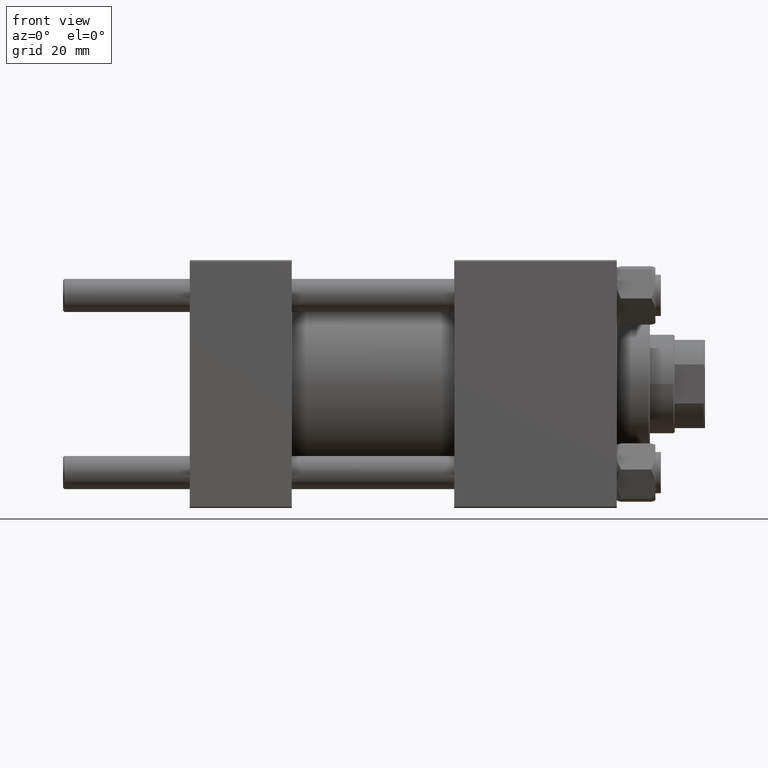
[diagram: clean part render]
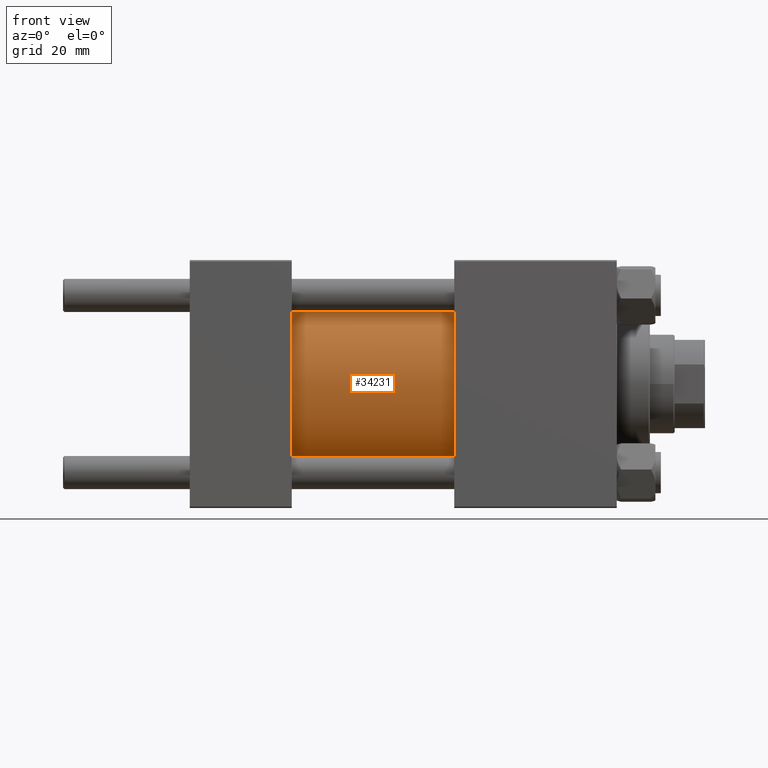
[diagram: same view with one face highlighted and labeled with its STEP entity id]
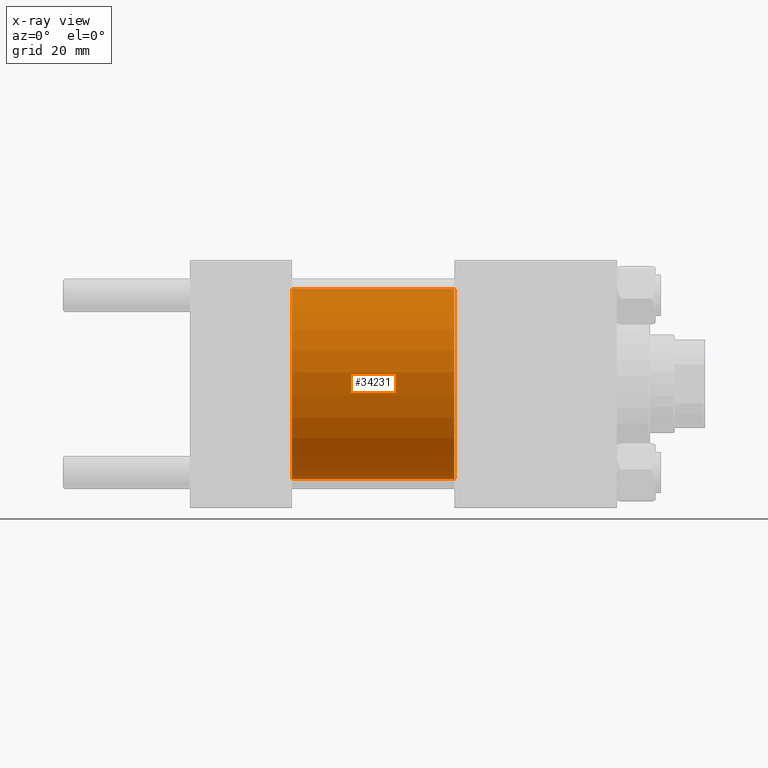
[diagram: x-ray of the same camera — body ghosted, the highlighted face saturated]
A machine part, front view. The second image highlights one B-rep face of the part: STEP entity #34231.
The next image is the same camera in x-ray: the body ghosted, the highlighted face saturated — about 4% of this face is hidden behind the body in this view.
In plain terms, the highlighted cylindrical surface (partial cylindrical patch) has radius 34.5 mm, axis along (-1, -0, -0).
Its self-contained STEP definition (entity closure, byte-faithful):
#2486 = DIRECTION ( 'NONE',  ( 1.000000000000000000, -0.000000000000000000, 0.000000000000000000 ) ) ;
#3474 = CARTESIAN_POINT ( 'NONE',  ( 96.00000000000000000, 0.000000000000000000, 0.000000000000000000 ) ) ;
#4634 = VECTOR ( 'NONE', #36415, 1000.000000000000000 ) ;
#6423 = DIRECTION ( 'NONE',  ( 0.000000000000000000, 0.000000000000000000, 1.000000000000000000 ) ) ;
#7741 = DIRECTION ( 'NONE',  ( 0.000000000000000000, 0.000000000000000000, -1.000000000000000000 ) ) ;
#7919 = CARTESIAN_POINT ( 'NONE',  ( 37.00000000000000000, 0.000000000000000000, 34.49999999999999289 ) ) ;
#9482 = AXIS2_PLACEMENT_3D ( 'NONE', #17870, #2486, #21898 ) ;
#9581 = ORIENTED_EDGE ( 'NONE', *, *, #30177, .T. ) ;
#10390 = CARTESIAN_POINT ( 'NONE',  ( 96.00000000000000000, 0.000000000000000000, 34.49999999999999289 ) ) ;
#10962 = CARTESIAN_POINT ( 'NONE',  ( 96.00000000000000000, 4.225031457058367344E-15, -34.49999999999999289 ) ) ;
#11877 = CARTESIAN_POINT ( 'NONE',  ( 37.00000000000000000, 4.225031457058367344E-15, -34.49999999999999289 ) ) ;
#12064 = CARTESIAN_POINT ( 'NONE',  ( 96.00000000000000000, 0.000000000000000000, 34.49999999999999289 ) ) ;
#14009 = CARTESIAN_POINT ( 'NONE',  ( 96.00000000000000000, 0.000000000000000000, 0.000000000000000000 ) ) ;
#14404 = ORIENTED_EDGE ( 'NONE', *, *, #45543, .F. ) ;
#15113 = CIRCLE ( 'NONE', #9482, 34.49999999999999289 ) ;
#17870 = CARTESIAN_POINT ( 'NONE',  ( 37.00000000000000000, 0.000000000000000000, 0.000000000000000000 ) ) ;
#20001 = AXIS2_PLACEMENT_3D ( 'NONE', #3474, #42329, #7741 ) ;
#21898 = DIRECTION ( 'NONE',  ( 0.000000000000000000, 0.000000000000000000, 1.000000000000000000 ) ) ;
#23409 = ORIENTED_EDGE ( 'NONE', *, *, #26488, .F. ) ;
#25596 = DIRECTION ( 'NONE',  ( -1.000000000000000000, -0.000000000000000000, -0.000000000000000000 ) ) ;
#26200 = VERTEX_POINT ( 'NONE', #12064 ) ;
#26488 = EDGE_CURVE ( 'NONE', #34361, #30391, #33231, .T. ) ;
#28719 = VECTOR ( 'NONE', #36784, 1000.000000000000000 ) ;
#30177 = EDGE_CURVE ( 'NONE', #26200, #48712, #49021, .T. ) ;
#30391 = VERTEX_POINT ( 'NONE', #11877 ) ;
#33231 = LINE ( 'NONE', #48663, #28719 ) ;
#34231 = ADVANCED_FACE ( 'NONE', ( #40526 ), #40022, .T. ) ;
#34361 = VERTEX_POINT ( 'NONE', #10962 ) ;
#36415 = DIRECTION ( 'NONE',  ( -1.000000000000000000, -0.000000000000000000, -0.000000000000000000 ) ) ;
#36784 = DIRECTION ( 'NONE',  ( -1.000000000000000000, -0.000000000000000000, -0.000000000000000000 ) ) ;
#40022 = CYLINDRICAL_SURFACE ( 'NONE', #46733, 34.49999999999999289 ) ;
#40526 = FACE_OUTER_BOUND ( 'NONE', #49471, .T. ) ;
#42329 = DIRECTION ( 'NONE',  ( 1.000000000000000000, 0.000000000000000000, 0.000000000000000000 ) ) ;
#43257 = EDGE_CURVE ( 'NONE', #48712, #30391, #15113, .T. ) ;
#44215 = CIRCLE ( 'NONE', #20001, 34.49999999999999289 ) ;
#45543 = EDGE_CURVE ( 'NONE', #26200, #34361, #44215, .T. ) ;
#46372 = ORIENTED_EDGE ( 'NONE', *, *, #43257, .T. ) ;
#46733 = AXIS2_PLACEMENT_3D ( 'NONE', #14009, #25596, #6423 ) ;
#48663 = CARTESIAN_POINT ( 'NONE',  ( 96.00000000000000000, 4.225031457058367344E-15, -34.49999999999999289 ) ) ;
#48712 = VERTEX_POINT ( 'NONE', #7919 ) ;
#49021 = LINE ( 'NONE', #10390, #4634 ) ;
#49471 = EDGE_LOOP ( 'NONE', ( #23409, #14404, #9581, #46372 ) ) ;